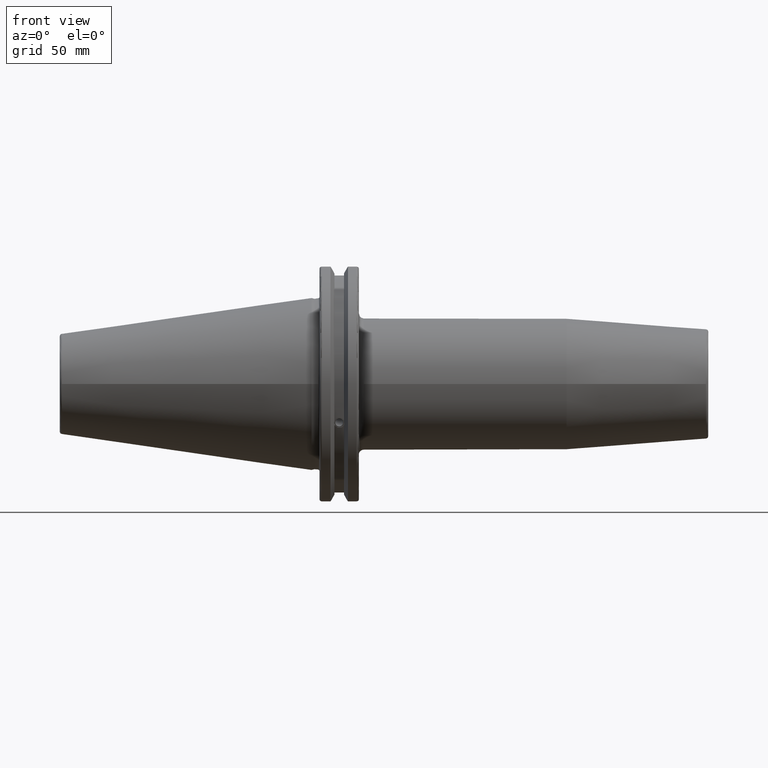
[diagram: clean part render]
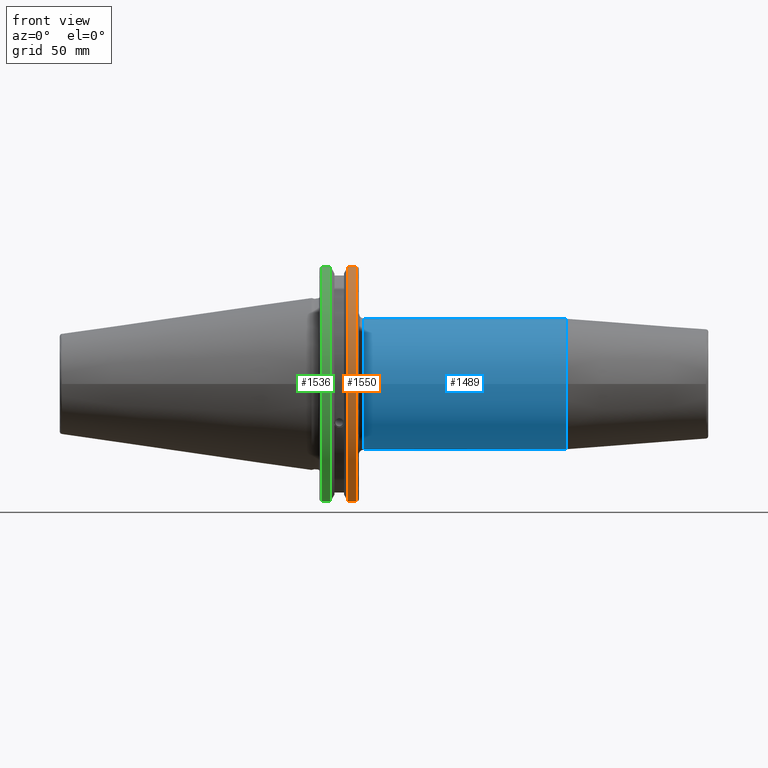
[diagram: same view with three faces highlighted in distinct colors, each labeled with its STEP entity id]
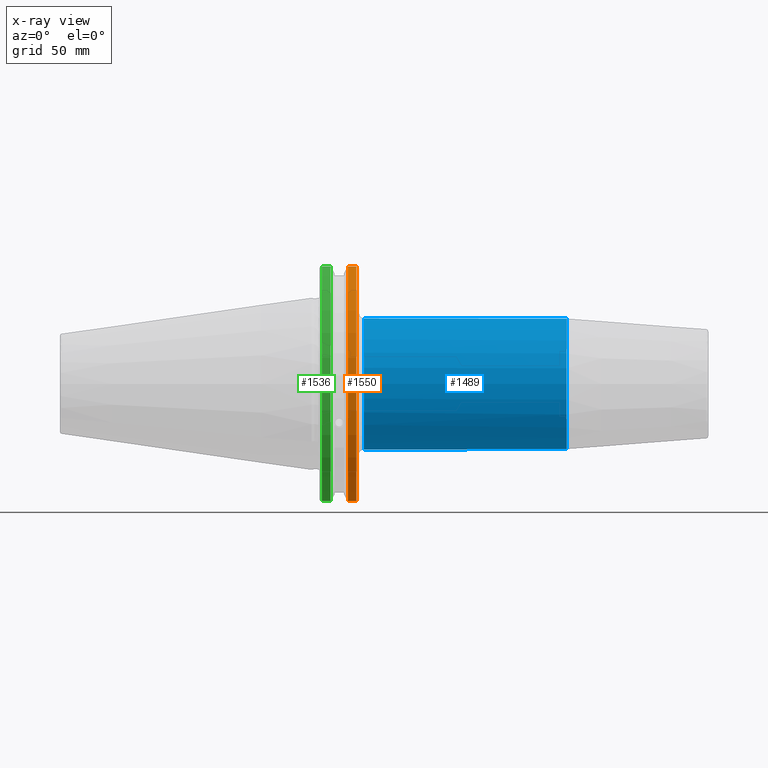
[diagram: x-ray of the same camera — body ghosted, the three highlighted faces saturated]
A machine part, front view with three faces highlighted in distinct colors.
The next image is the same camera in x-ray (body ghosted, the three faces saturated) — at least one of them is partly hidden behind the body in this view.
Their STEP definitions:

[orange] entity #1550 — the highlighted cylindrical surface (partial cylindrical patch) has radius 49.2125 mm, axis along (1, 0, 0).
#168=LINE('',#3087,#262);
#169=LINE('',#3089,#263);
#262=VECTOR('',#2121,10.);
#263=VECTOR('',#2124,10.);
#292=CYLINDRICAL_SURFACE('',#1730,49.2125);
#429=FACE_OUTER_BOUND('',#537,.T.);
#537=EDGE_LOOP('',(#1383,#1384,#1385,#1386));
#591=CIRCLE('',#1655,49.2125);
#615=CIRCLE('',#1702,49.2125);
#698=VERTEX_POINT('',#2571);
#699=VERTEX_POINT('',#2575);
#759=VERTEX_POINT('',#2930);
#760=VERTEX_POINT('',#2939);
#870=EDGE_CURVE('',#699,#698,#591,.T.);
#951=EDGE_CURVE('',#759,#760,#615,.T.);
#997=EDGE_CURVE('',#760,#698,#168,.T.);
#998=EDGE_CURVE('',#699,#759,#169,.T.);
#1383=ORIENTED_EDGE('',*,*,#951,.F.);
#1384=ORIENTED_EDGE('',*,*,#998,.F.);
#1385=ORIENTED_EDGE('',*,*,#870,.T.);
#1386=ORIENTED_EDGE('',*,*,#997,.F.);
#1550=ADVANCED_FACE('',(#429),#292,.T.);
#1655=AXIS2_PLACEMENT_3D('',#2576,#1917,#1918);
#1702=AXIS2_PLACEMENT_3D('',#2940,#2042,#2043);
#1730=AXIS2_PLACEMENT_3D('',#3088,#2122,#2123);
#1917=DIRECTION('center_axis',(1.,0.,0.));
#1918=DIRECTION('ref_axis',(0.,0.,-1.));
#2042=DIRECTION('center_axis',(1.,0.,0.));
#2043=DIRECTION('ref_axis',(0.,-1.,1.60812264967664E-16));
#2121=DIRECTION('',(-1.,0.,0.));
#2122=DIRECTION('center_axis',(1.,0.,0.));
#2123=DIRECTION('ref_axis',(0.,-1.,1.22464679914735E-16));
#2124=DIRECTION('',(1.,0.,0.));
#2571=CARTESIAN_POINT('',(14.6602090340487,-13.4317035994433,-47.3440544806494));
#2575=CARTESIAN_POINT('',(14.6602090340487,-13.4317035994433,47.3440544806494));
#2576=CARTESIAN_POINT('Origin',(14.6602090340487,0.,0.));
#2930=CARTESIAN_POINT('',(18.05,-13.4317035994433,47.3440544806494));
#2939=CARTESIAN_POINT('',(18.05,-13.4317035994433,-47.3440544806494));
#2940=CARTESIAN_POINT('Origin',(18.05,0.,0.));
#3087=CARTESIAN_POINT('',(16.8551045170244,-13.4317035994433,-47.3440544806494));
#3088=CARTESIAN_POINT('Origin',(16.8551045170244,0.,0.));
#3089=CARTESIAN_POINT('',(16.8551045170244,-13.4317035994433,47.3440544806494));

[blue] entity #1489 — the highlighted cylindrical surface (bore or boss wall) has radius 26.5 mm, axis along (1, 0, 0).
#85=LINE('',#2233,#179);
#179=VECTOR('',#1812,26.5);
#272=CYLINDRICAL_SURFACE('',#1616,26.5);
#368=FACE_OUTER_BOUND('',#459,.T.);
#459=EDGE_LOOP('',(#1047,#1048,#1049,#1050,#1051));
#569=CIRCLE('',#1610,26.5);
#570=CIRCLE('',#1612,26.5);
#573=CIRCLE('',#1615,26.5);
#645=VERTEX_POINT('',#2221);
#646=VERTEX_POINT('',#2225);
#647=VERTEX_POINT('',#2226);
#803=EDGE_CURVE('',#645,#645,#569,.T.);
#804=EDGE_CURVE('',#646,#647,#570,.T.);
#807=EDGE_CURVE('',#647,#646,#573,.T.);
#808=EDGE_CURVE('',#645,#646,#85,.T.);
#1047=ORIENTED_EDGE('',*,*,#803,.F.);
#1048=ORIENTED_EDGE('',*,*,#808,.T.);
#1049=ORIENTED_EDGE('',*,*,#807,.F.);
#1050=ORIENTED_EDGE('',*,*,#804,.F.);
#1051=ORIENTED_EDGE('',*,*,#808,.F.);
#1489=ADVANCED_FACE('',(#368),#272,.T.);
#1610=AXIS2_PLACEMENT_3D('',#2223,#1798,#1799);
#1612=AXIS2_PLACEMENT_3D('',#2227,#1802,#1803);
#1615=AXIS2_PLACEMENT_3D('',#2231,#1808,#1809);
#1616=AXIS2_PLACEMENT_3D('',#2232,#1810,#1811);
#1798=DIRECTION('center_axis',(1.,0.,0.));
#1799=DIRECTION('ref_axis',(0.,0.,-1.));
#1802=DIRECTION('center_axis',(-1.,0.,0.));
#1803=DIRECTION('ref_axis',(0.,-1.,-1.22464679914735E-16));
#1808=DIRECTION('center_axis',(-1.,0.,0.));
#1809=DIRECTION('ref_axis',(0.,-1.,-1.22464679914735E-16));
#1810=DIRECTION('center_axis',(1.,0.,0.));
#1811=DIRECTION('ref_axis',(0.,1.,0.));
#1812=DIRECTION('',(-1.,0.,0.));
#2221=CARTESIAN_POINT('',(102.822078687214,-26.5,-3.24531401774049E-15));
#2223=CARTESIAN_POINT('Origin',(102.822078687214,0.,0.));
#2225=CARTESIAN_POINT('',(21.05,-26.5,-3.24531401774049E-15));
#2226=CARTESIAN_POINT('',(21.05,-3.24531401774049E-15,-26.5));
#2227=CARTESIAN_POINT('Origin',(21.05,0.,0.));
#2231=CARTESIAN_POINT('Origin',(21.05,0.,0.));
#2232=CARTESIAN_POINT('Origin',(60.9360393436069,0.,0.));
#2233=CARTESIAN_POINT('',(60.9360393436069,-26.5,-3.24531401774049E-15));

[green] entity #1536 — the highlighted cylindrical surface (partial cylindrical patch) has radius 49.2125 mm, axis along (1, 0, 0).
#154=LINE('',#3007,#248);
#155=LINE('',#3013,#249);
#248=VECTOR('',#2063,10.);
#249=VECTOR('',#2066,10.);
#291=CYLINDRICAL_SURFACE('',#1708,49.2125);
#415=FACE_OUTER_BOUND('',#522,.T.);
#522=EDGE_LOOP('',(#1317,#1318,#1319,#1320));
#616=CIRCLE('',#1706,49.2125);
#617=CIRCLE('',#1709,49.2125);
#768=VERTEX_POINT('',#2986);
#769=VERTEX_POINT('',#2995);
#770=VERTEX_POINT('',#3006);
#771=VERTEX_POINT('',#3012);
#967=EDGE_CURVE('',#768,#769,#616,.T.);
#969=EDGE_CURVE('',#769,#770,#154,.T.);
#971=EDGE_CURVE('',#771,#768,#155,.T.);
#972=EDGE_CURVE('',#770,#771,#617,.T.);
#1317=ORIENTED_EDGE('',*,*,#967,.F.);
#1318=ORIENTED_EDGE('',*,*,#971,.F.);
#1319=ORIENTED_EDGE('',*,*,#972,.F.);
#1320=ORIENTED_EDGE('',*,*,#969,.F.);
#1536=ADVANCED_FACE('',(#415),#291,.T.);
#1706=AXIS2_PLACEMENT_3D('',#2996,#2059,#2060);
#1708=AXIS2_PLACEMENT_3D('',#3011,#2064,#2065);
#1709=AXIS2_PLACEMENT_3D('',#3014,#2067,#2068);
#2059=DIRECTION('center_axis',(-1.,0.,0.));
#2060=DIRECTION('ref_axis',(0.,-1.,1.60812264967664E-16));
#2063=DIRECTION('',(1.,0.,0.));
#2064=DIRECTION('center_axis',(1.,0.,0.));
#2065=DIRECTION('ref_axis',(0.,-1.,1.22464679914735E-16));
#2066=DIRECTION('',(-1.,0.,0.));
#2067=DIRECTION('center_axis',(1.,0.,0.));
#2068=DIRECTION('ref_axis',(0.,0.,-1.));
#2986=CARTESIAN_POINT('',(4.175,-13.4317035994433,-47.3440544806494));
#2995=CARTESIAN_POINT('',(4.175,-13.4317035994433,47.3440544806494));
#2996=CARTESIAN_POINT('Origin',(4.175,0.,0.));
#3006=CARTESIAN_POINT('',(7.60799096595127,-13.4317035994433,47.3440544806494));
#3007=CARTESIAN_POINT('',(5.39149548297563,-13.4317035994433,47.3440544806494));
#3011=CARTESIAN_POINT('Origin',(5.39149548297563,0.,0.));
#3012=CARTESIAN_POINT('',(7.60799096595127,-13.4317035994433,-47.3440544806494));
#3013=CARTESIAN_POINT('',(5.39149548297563,-13.4317035994433,-47.3440544806494));
#3014=CARTESIAN_POINT('Origin',(7.60799096595127,0.,0.));